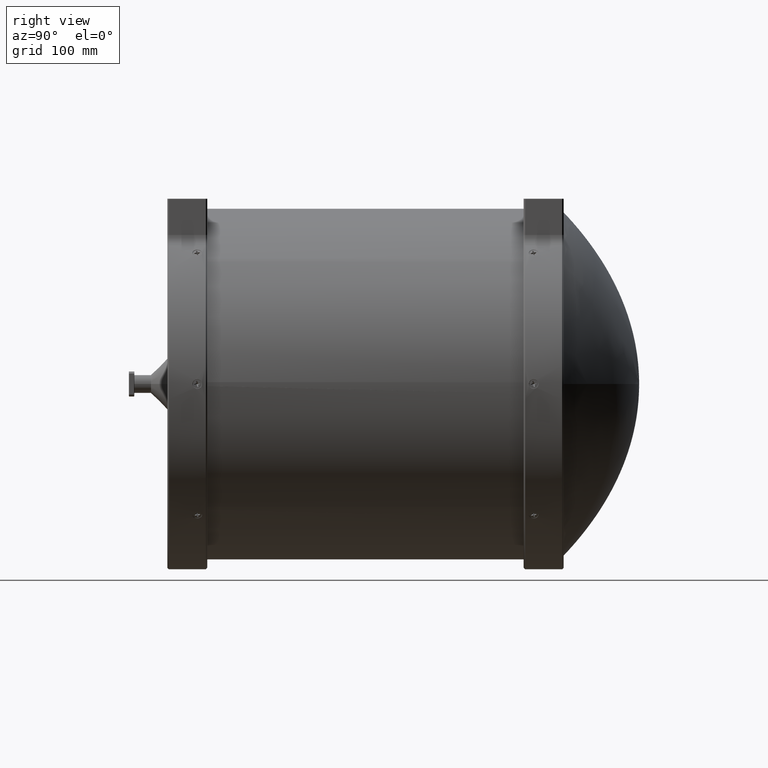
[diagram: clean part render]
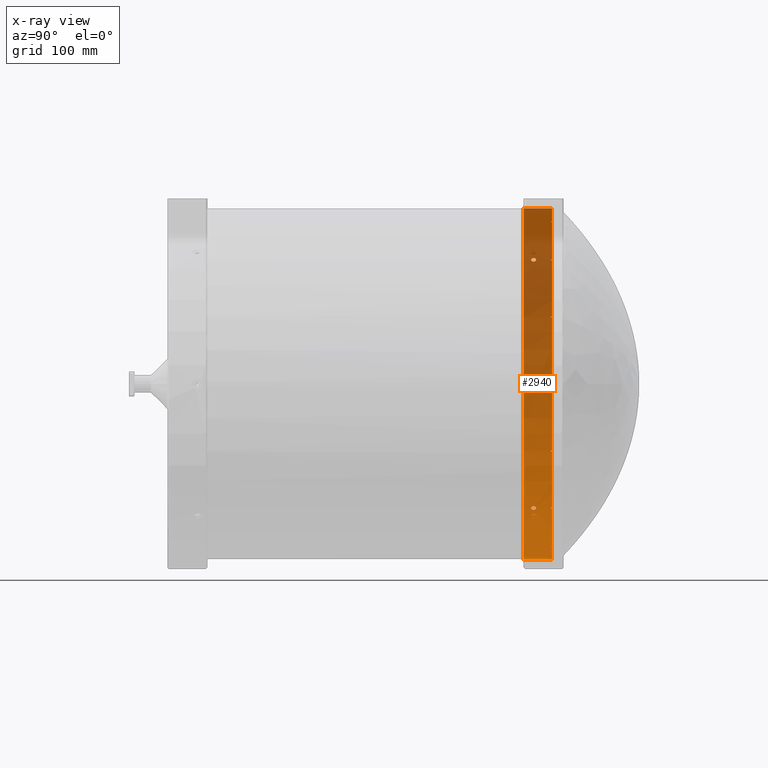
[diagram: x-ray — body ghosted, one internal face saturated and labeled with its STEP entity id]
A machine part, right view, then the same camera in x-ray: the body is ghosted and one INTERNAL B-rep face — a face not visible from any outside direction — is saturated and labeled: STEP entity #2940.
In plain terms, the highlighted cylindrical surface (partial cylindrical patch) has radius 156.4 mm, axis along (-0, 1, -0).
Its self-contained STEP definition (entity closure, byte-faithful):
#1 = CARTESIAN_POINT ( 'NONE',  ( -109.3222791216181520, 149.9638981589436355, 111.8470492947781878 ) ) ;
#89 = CARTESIAN_POINT ( 'NONE',  ( -1.484710441420378668, 150.2843136331242420, 156.3934878425915826 ) ) ;
#96 = EDGE_LOOP ( 'NONE', ( #1715, #8971 ) ) ;
#123 = VERTEX_POINT ( 'NONE', #3724 ) ;
#499 = CIRCLE ( 'NONE', #4553, 156.4004999999999939 ) ;
#532 = VECTOR ( 'NONE', #4322, 1000.000000000000000 ) ;
#596 = CARTESIAN_POINT ( 'NONE',  ( -109.3883073050205184, 147.1038961953719877, 111.7824914043780353 ) ) ;
#600 = CARTESIAN_POINT ( 'NONE',  ( -109.3134651437362805, 149.9709975165611411, -111.8558251987888781 ) ) ;
#759 = CARTESIAN_POINT ( 'NONE',  ( -5.139198929834911689E-16, 146.3421000000000447, 156.4004999999999939 ) ) ;
#981 = B_SPLINE_CURVE_WITH_KNOTS ( 'NONE', 3,
 ( #12055, #23724, #19898, #24225, #35400, #16118, #600, #31606, #43253, #23964, #20158, #20427, #9019, #25245, #24980, #2107, #33362, #1612, #24494, #32849, #36164, #9263, #48817, #44494, #5942, #14074, #28570, #5178, #1352, #36416 ),
 .UNSPECIFIED., .F., .F.,
 ( 4, 2, 2, 2, 2, 2, 2, 2, 2, 2, 2, 2, 2, 2, 4 ),
 ( 0.007028053637818780681, 0.007467207785012362417, 0.007906361932205945020, 0.008784670226593118900, 0.009223824373786736197, 0.009662978520980353495, 0.01010213266817397079, 0.01054128681536758635, 0.01098044096256120365, 0.01141959510975482095, 0.01185874925694843651, 0.01229790340414205554, 0.01273705755133567111, 0.01317621169852928840, 0.01405451999291644494 ),
 .UNSPECIFIED. ) ;
#991 = VERTEX_POINT ( 'NONE', #35876 ) ;
#1233 = EDGE_CURVE ( 'NONE', #18843, #46830, #22622, .T. ) ;
#1261 = ORIENTED_EDGE ( 'NONE', *, *, #8645, .F. ) ;
#1349 = CARTESIAN_POINT ( 'NONE',  ( -110.3839399403950665, 146.3422041026280453, 110.7997662055389156 ) ) ;
#1352 = CARTESIAN_POINT ( 'NONE',  ( -112.1699361198928528, 148.8869849902441160, -108.9909254530355867 ) ) ;
#1492 = CARTESIAN_POINT ( 'NONE',  ( -59.54326178428616601, 163.8299999999993588, 144.6226689573179272 ) ) ;
#1495 = CARTESIAN_POINT ( 'NONE',  ( 0.000000000000000000, 139.7000000000000171, 0.000000000000000000 ) ) ;
#1612 = CARTESIAN_POINT ( 'NONE',  ( -111.0014204885376330, 150.7666551754239492, -110.1808589334436022 ) ) ;
#1715 = ORIENTED_EDGE ( 'NONE', *, *, #45502, .F. ) ;
#1733 = LINE ( 'NONE', #6051, #2321 ) ;
#1853 = VERTEX_POINT ( 'NONE', #28646 ) ;
#1906 = EDGE_CURVE ( 'NONE', #18781, #21288, #3162, .T. ) ;
#2020 = ORIENTED_EDGE ( 'NONE', *, *, #35871, .F. ) ;
#2107 = CARTESIAN_POINT ( 'NONE',  ( -110.6953212067969332, 150.8380238344928443, -110.4883895722064580 ) ) ;
#2321 = VECTOR ( 'NONE', #2497, 1000.000000000000000 ) ;
#2419 = CARTESIAN_POINT ( 'NONE',  ( -0.7248242039380327073, 146.4570659328283000, 156.3988796869685416 ) ) ;
#2425 = CARTESIAN_POINT ( 'NONE',  ( -156.3843449512770007, 148.5900000000000318, -2.247900000000494725 ) ) ;
#2497 = DIRECTION ( 'NONE',  ( -0.000000000000000000, 1.000000000000000000, -0.000000000000000000 ) ) ;
#2706 = CARTESIAN_POINT ( 'NONE',  ( -156.3843449512770007, 148.5900000000000318, -2.247900000000494725 ) ) ;
#2731 = ORIENTED_EDGE ( 'NONE', *, *, #28660, .F. ) ;
#2765 = CARTESIAN_POINT ( 'NONE',  ( -112.1597790698019850, 148.2954305501027648, -109.0013815271136224 ) ) ;
#2910 = CARTESIAN_POINT ( 'NONE',  ( -156.3996215737834632, 146.4012004309230122, 0.5898827259143141211 ) ) ;
#2940 = ADVANCED_FACE ( 'NONE', ( #50208, #42349, #23079, #14978 ), #42085, .F. ) ;
#2998 = CARTESIAN_POINT ( 'NONE',  ( 1.915353717100456204E-14, 139.7000000000000171, -156.4004999999999939 ) ) ;
#3001 = CARTESIAN_POINT ( 'NONE',  ( -110.0793401135429974, 146.4565201592000960, -111.1020872876617034 ) ) ;
#3060 = CARTESIAN_POINT ( 'NONE',  ( -60.16022575137983353, 167.0050000000000239, 144.3671141146509171 ) ) ;
#3109 = CARTESIAN_POINT ( 'NONE',  ( -156.3853614759627249, 149.1721696722472643, -2.176221920624356265 ) ) ;
#3158 = CARTESIAN_POINT ( 'NONE',  ( -1.964903268376140710, 147.4595137952245238, 156.3881968383930996 ) ) ;
#3162 = B_SPLINE_CURVE_WITH_KNOTS ( 'NONE', 3,
 ( #9341, #21506, #5265, #40777 ),
 .UNSPECIFIED., .F., .F.,
 ( 4, 4 ),
 ( 1.117339526737857070E-06, 0.0006689143253708616007 ),
 .UNSPECIFIED. ) ;
#3255 = LINE ( 'NONE', #2998, #35415 ) ;
#3292 = CARTESIAN_POINT ( 'NONE',  ( -144.6226689573161934, 163.8300000000000409, 59.54326178428735261 ) ) ;
#3314 = CARTESIAN_POINT ( 'NONE',  ( -109.3888349142864200, 150.0769515125258806, 111.7819751929658878 ) ) ;
#3370 = CARTESIAN_POINT ( 'NONE',  ( -156.3988727147142868, 150.7224223590039287, -0.7262787653805897747 ) ) ;
#3422 = EDGE_CURVE ( 'NONE', #47756, #26134, #31498, .T. ) ;
#3553 = CARTESIAN_POINT ( 'NONE',  ( -2.247899999999933396, 148.5900000000000318, -156.3843449512770007 ) ) ;
#3615 = CARTESIAN_POINT ( 'NONE',  ( -156.4004981973180293, 150.8377745760675737, -0.1501031856089459215 ) ) ;
#3619 = EDGE_CURVE ( 'NONE', #33576, #5279, #48163, .T. ) ;
#3649 = ORIENTED_EDGE ( 'NONE', *, *, #28555, .F. ) ;
#3724 = CARTESIAN_POINT ( 'NONE',  ( -59.54326178428682681, 163.8300000000000409, -144.6226689573163924 ) ) ;
#3800 = CARTESIAN_POINT ( 'NONE',  ( 1.915353715773463104E-14, 150.8378999999999621, -156.4004999999999939 ) ) ;
#3864 = CARTESIAN_POINT ( 'NONE',  ( -156.3994896575807161, 150.7666551754240061, 0.5802246399882275973 ) ) ;
#4053 = CARTESIAN_POINT ( 'NONE',  ( -0.2946916012418118180, 150.8232986785969274, -156.4002882199627038 ) ) ;
#4058 = CARTESIAN_POINT ( 'NONE',  ( -109.8858480906002910, 150.6109218953408231, 111.2934651083193671 ) ) ;
#4178 = CARTESIAN_POINT ( 'NONE',  ( -144.3671141146517982, 165.1000000000000227, -60.16022575138083539 ) ) ;
#4299 = CARTESIAN_POINT ( 'NONE',  ( -110.8010078864533057, 150.8231362758495777, 110.3823975609150239 ) ) ;
#4322 = DIRECTION ( 'NONE',  ( 0.000000000000000000, -1.000000000000000000, 0.000000000000000000 ) ) ;
#4352 = CARTESIAN_POINT ( 'NONE',  ( -2.247899999999933396, 148.5900000000000318, -156.3843449512770007 ) ) ;
#4467 = B_SPLINE_CURVE_WITH_KNOTS ( 'NONE', 3,
 ( #22990, #38467, #31804, #23916 ),
 .UNSPECIFIED., .F., .F.,
 ( 4, 4 ),
 ( 1.117339526455412452E-06, 0.0006689143253705695166 ),
 .UNSPECIFIED. ) ;
#4553 = AXIS2_PLACEMENT_3D ( 'NONE', #15137, #19423, #39443 ) ;
#4652 = CARTESIAN_POINT ( 'NONE',  ( -109.2036478279091511, 147.4639628842843422, 111.9628793737166035 ) ) ;
#4682 = VERTEX_POINT ( 'NONE', #11934 ) ;
#4710 = ORIENTED_EDGE ( 'NONE', *, *, #40605, .F. ) ;
#4924 = CARTESIAN_POINT ( 'NONE',  ( -108.9909254530351603, 148.5900000000000318, 112.1699361198932223 ) ) ;
#4970 = VERTEX_POINT ( 'NONE', #14948 ) ;
#5088 = CARTESIAN_POINT ( 'NONE',  ( -110.3555002158504266, 165.1000000000000227, 110.8277039929973142 ) ) ;
#5178 = CARTESIAN_POINT ( 'NONE',  ( -112.1283640703719868, 149.1820052132925696, -109.0337516150593444 ) ) ;
#5265 = CARTESIAN_POINT ( 'NONE',  ( -156.4006188069930943, 163.7902162304462479, -0.1112994976400838304 ) ) ;
#5279 = VERTEX_POINT ( 'NONE', #48550 ) ;
#5358 = CARTESIAN_POINT ( 'NONE',  ( -1.692702713705215967, 147.1036184558379034, -156.3913742046519531 ) ) ;
#5362 = EDGE_CURVE ( 'NONE', #37090, #45421, #43807, .T. ) ;
#5419 = CARTESIAN_POINT ( 'NONE',  ( -110.8277039929972716, 163.8299999999993588, -110.3555002158504834 ) ) ;
#5496 = ORIENTED_EDGE ( 'NONE', *, *, #45801, .F. ) ;
#5507 = EDGE_CURVE ( 'NONE', #21277, #30909, #15822, .T. ) ;
#5734 = CARTESIAN_POINT ( 'NONE',  ( -5.139198929834911689E-16, 146.3421000000000447, 156.4004999999999939 ) ) ;
#5739 = CARTESIAN_POINT ( 'NONE',  ( -156.3843449512770292, 148.4414739603394366, 2.247899999999397824 ) ) ;
#5762 = ORIENTED_EDGE ( 'NONE', *, *, #6767, .F. ) ;
#5849 = CARTESIAN_POINT ( 'NONE',  ( -60.16022575138136119, 163.8299999999993872, -144.3671141146515708 ) ) ;
#5869 = EDGE_CURVE ( 'NONE', #12479, #18843, #34047, .T. ) ;
#5942 = CARTESIAN_POINT ( 'NONE',  ( -111.8470492947778610, 149.9638981589436639, -109.3222791216186209 ) ) ;
#5987 = CARTESIAN_POINT ( 'NONE',  ( -156.3859646957221230, 147.8653363443432625, 2.132986415898618926 ) ) ;
#6051 = CARTESIAN_POINT ( 'NONE',  ( -144.3671141146507182, 167.0050000000000239, -60.16022575138032380 ) ) ;
#6179 = CARTESIAN_POINT ( 'NONE',  ( -144.3671141146513719, 163.8299999999993872, 60.16022575138189410 ) ) ;
#6228 = CARTESIAN_POINT ( 'NONE',  ( -156.3913602142547461, 147.1050062789252308, -1.694067915433150384 ) ) ;
#6303 = ORIENTED_EDGE ( 'NONE', *, *, #1233, .F. ) ;
#6591 = CARTESIAN_POINT ( 'NONE',  ( -109.3875044156940533, 147.1050062789252593, -111.7832782372811380 ) ) ;
#6636 = CARTESIAN_POINT ( 'NONE',  ( -111.5574825193759239, 150.3770266542173317, 109.6177879499542485 ) ) ;
#6691 = DIRECTION ( 'NONE',  ( -0.000000000000000000, 1.000000000000000000, -0.000000000000000000 ) ) ;
#6738 = ORIENTED_EDGE ( 'NONE', *, *, #17591, .F. ) ;
#6767 = EDGE_CURVE ( 'NONE', #46830, #9825, #4467, .T. ) ;
#6827 = CARTESIAN_POINT ( 'NONE',  ( -110.1788478945522769, 146.4140628224803322, -111.0034173301105795 ) ) ;
#6928 = CARTESIAN_POINT ( 'NONE',  ( -156.3973744679516358, 150.6095492448704647, -0.9980615260424365864 ) ) ;
#6929 = DIRECTION ( 'NONE',  ( 0.000000000000000000, -1.000000000000000000, 0.000000000000000000 ) ) ;
#7073 = CARTESIAN_POINT ( 'NONE',  ( -111.5646995482544668, 146.7928410048550916, -109.6105708974620114 ) ) ;
#7076 = DIRECTION ( 'NONE',  ( 0.000000000000000000, -1.000000000000000000, 0.000000000000000000 ) ) ;
#7129 = EDGE_CURVE ( 'NONE', #26521, #19590, #34551, .T. ) ;
#7331 = CARTESIAN_POINT ( 'NONE',  ( -112.0110845116237641, 147.5930864328059613, -109.1541869622596010 ) ) ;
#7345 = VERTEX_POINT ( 'NONE', #45129 ) ;
#7367 = CARTESIAN_POINT ( 'NONE',  ( -110.5132375106720986, 163.7902162304462479, 110.6706387697221032 ) ) ;
#7383 = CARTESIAN_POINT ( 'NONE',  ( -1.949877247303314576, 149.7181780404993390, -156.3883663002727076 ) ) ;
#7387 = CARTESIAN_POINT ( 'NONE',  ( -109.6198058861621547, 150.3791719409513519, 111.5554995138392087 ) ) ;
#7484 = EDGE_CURVE ( 'NONE', #1853, #22922, #3255, .T. ) ;
#7583 = CARTESIAN_POINT ( 'NONE',  ( -111.0083430654307790, 146.4012004309230122, -110.1741229142335641 ) ) ;
#7610 = LINE ( 'NONE', #41842, #35255 ) ;
#7712 = CARTESIAN_POINT ( 'NONE',  ( -0.2956391438410629346, 150.8232058603648511, 156.4002868600958607 ) ) ;
#7729 = CARTESIAN_POINT ( 'NONE',  ( -2.247899999999968035, 148.5900000000000318, 156.3843449512770007 ) ) ;
#7808 = ORIENTED_EDGE ( 'NONE', *, *, #41181, .T. ) ;
#7925 = CARTESIAN_POINT ( 'NONE',  ( -156.3843449512770007, 148.5900000000000318, -2.247900000000494725 ) ) ;
#8035 = VERTEX_POINT ( 'NONE', #47302 ) ;
#8128 = CARTESIAN_POINT ( 'NONE',  ( -111.1042601065383622, 150.7224223590038434, 110.0771468264739212 ) ) ;
#8182 = EDGE_CURVE ( 'NONE', #45240, #26582, #9522, .T. ) ;
#8247 = CARTESIAN_POINT ( 'NONE',  ( -111.8484351627812714, 147.2188013726390921, 109.3208606766194464 ) ) ;
#8324 = CARTESIAN_POINT ( 'NONE',  ( -110.3555002158509097, 165.1000000000000227, -110.8277039929968169 ) ) ;
#8343 = CARTESIAN_POINT ( 'NONE',  ( -60.16022575138094908, 165.1000000000000227, -144.3671141146517414 ) ) ;
#8437 = CARTESIAN_POINT ( 'NONE',  ( -0.2933085186974920822, 146.3421000000001015, -156.4004999999999939 ) ) ;
#8492 = CARTESIAN_POINT ( 'NONE',  ( -110.8001173325989015, 146.3566642991476385, 110.3832921298142224 ) ) ;
#8552 = DIRECTION ( 'NONE',  ( 0.000000000000000000, -1.000000000000000000, 0.000000000000000000 ) ) ;
#8645 = EDGE_CURVE ( 'NONE', #12861, #13016, #10379, .T. ) ;
#8660 = ORIENTED_EDGE ( 'NONE', *, *, #22976, .F. ) ;
#8971 = ORIENTED_EDGE ( 'NONE', *, *, #47056, .F. ) ;
#9013 = CARTESIAN_POINT ( 'NONE',  ( -111.7832782372807259, 147.1050062789252593, 109.3875044156943659 ) ) ;
#9019 = CARTESIAN_POINT ( 'NONE',  ( -110.1786538869843071, 150.7658307032855873, -111.0036092548431554 ) ) ;
#9103 = CARTESIAN_POINT ( 'NONE',  ( -144.3671141146515424, 165.1000000000000227, 60.16022575138146067 ) ) ;
#9150 = VERTEX_POINT ( 'NONE', #3292 ) ;
#9259 = CARTESIAN_POINT ( 'NONE',  ( -109.3203992152397888, 147.2195929738922189, 111.8488863243440221 ) ) ;
#9263 = CARTESIAN_POINT ( 'NONE',  ( -111.5554995138388108, 150.3791719409513519, -109.6198058861625952 ) ) ;
#9341 = CARTESIAN_POINT ( 'NONE',  ( -156.4001435806451354, 163.8299999999993588, 0.3338984929226636589 ) ) ;
#9374 = DIRECTION ( 'NONE',  ( -0.000000000000000000, 1.000000000000000000, -0.000000000000000000 ) ) ;
#9522 = LINE ( 'NONE', #37180, #11976 ) ;
#9557 = CARTESIAN_POINT ( 'NONE',  ( -156.3973918622942847, 146.5691081320513263, -0.9953583175128567495 ) ) ;
#9654 = DIRECTION ( 'NONE',  ( -0.000000000000000000, 1.000000000000000000, -0.000000000000000000 ) ) ;
#9700 = AXIS2_PLACEMENT_3D ( 'NONE', #34046, #49497, #26429 ) ;
#9825 = VERTEX_POINT ( 'NONE', #38748 ) ;
#10048 = ORIENTED_EDGE ( 'NONE', *, *, #8182, .F. ) ;
#10059 = CARTESIAN_POINT ( 'NONE',  ( -156.4004985037625772, 146.3422041026280169, 0.2940335718784212737 ) ) ;
#10379 = CIRCLE ( 'NONE', #35486, 156.4004999999999939 ) ;
#10385 = CARTESIAN_POINT ( 'NONE',  ( -111.9628793737162766, 147.4639628842843990, -109.2036478279095917 ) ) ;
#10438 = CARTESIAN_POINT ( 'NONE',  ( -111.6384028535128294, 150.2820770812720070, 109.5353556239376758 ) ) ;
#10559 = CARTESIAN_POINT ( 'NONE',  ( -156.4002887168330744, 146.3566642991476670, -0.2947399274588001772 ) ) ;
#10661 = CARTESIAN_POINT ( 'NONE',  ( -111.7824914043776516, 147.1038961953720445, -109.3883073050210015 ) ) ;
#10706 = CARTESIAN_POINT ( 'NONE',  ( -1.785753669189259041, 149.9632773949909961, -156.3903264885037174 ) ) ;
#10763 = CARTESIAN_POINT ( 'NONE',  ( -156.3903049914159169, 149.9709975165611411, -1.797720035145230266 ) ) ;
#10790 = CARTESIAN_POINT ( 'NONE',  ( -0.9961356296481452821, 150.6105196767777841, 156.3973870174438616 ) ) ;
#10845 = CARTESIAN_POINT ( 'NONE',  ( -110.8277039929955947, 167.0050000000000239, 110.3555002158504976 ) ) ;
#10858 = B_SPLINE_CURVE_WITH_KNOTS ( 'NONE', 3,
 ( #40896, #45465, #25700, #41140 ),
 .UNSPECIFIED., .F., .F.,
 ( 4, 4 ),
 ( 1.117339526470167554E-06, 0.0003350158324486071475 ),
 .UNSPECIFIED. ) ;
#10949 = CARTESIAN_POINT ( 'NONE',  ( -108.9909254530351888, 148.8869849902441160, 112.1699361198932934 ) ) ;
#11197 = CARTESIAN_POINT ( 'NONE',  ( -109.5371634590763961, 150.2843159597925649, 111.6366293081506029 ) ) ;
#11255 = CARTESIAN_POINT ( 'NONE',  ( -156.4002914970313327, 150.8235270218532946, 0.2929939047166290056 ) ) ;
#11409 = DIRECTION ( 'NONE',  ( 0.000000000000000000, 0.000000000000000000, -1.000000000000000000 ) ) ;
#11428 = ORIENTED_EDGE ( 'NONE', *, *, #3619, .F. ) ;
#11551 = CARTESIAN_POINT ( 'NONE',  ( -2.233236632864504578, 148.8854710614503460, 156.3845576786885090 ) ) ;
#11706 = VERTEX_POINT ( 'NONE', #6179 ) ;
#11757 = CARTESIAN_POINT ( 'NONE',  ( -156.3881939368497456, 149.7200619893784790, -1.965129085682548737 ) ) ;
#11847 = VERTEX_POINT ( 'NONE', #42440 ) ;
#11934 = CARTESIAN_POINT ( 'NONE',  ( -108.9909254530343929, 148.5900000000000318, -112.1699361198939613 ) ) ;
#11976 = VECTOR ( 'NONE', #39960, 1000.000000000000000 ) ;
#11998 = CARTESIAN_POINT ( 'NONE',  ( -60.16022575138083539, 167.0050000000000239, -144.3671141146505477 ) ) ;
#12055 = CARTESIAN_POINT ( 'NONE',  ( -108.9909254530343929, 148.5900000000000318, -112.1699361198939613 ) ) ;
#12061 = EDGE_CURVE ( 'NONE', #49057, #11847, #46149, .T. ) ;
#12083 = CARTESIAN_POINT ( 'NONE',  ( 1.199937640644937138E-17, 163.7994762805534492, 156.4004999999999939 ) ) ;
#12089 = VERTEX_POINT ( 'NONE', #27421 ) ;
#12258 = CARTESIAN_POINT ( 'NONE',  ( -2.247899999999933840, 148.4414403223697434, -156.3843449512770292 ) ) ;
#12468 = CARTESIAN_POINT ( 'NONE',  ( -60.16022575137983353, 163.8300000000000409, 144.3671141146509171 ) ) ;
#12479 = VERTEX_POINT ( 'NONE', #4178 ) ;
#12606 = AXIS2_PLACEMENT_3D ( 'NONE', #32656, #40484, #21469 ) ;
#12861 = VERTEX_POINT ( 'NONE', #17377 ) ;
#12949 = VERTEX_POINT ( 'NONE', #48824 ) ;
#12958 = DIRECTION ( 'NONE',  ( 0.000000000000000000, -1.000000000000000000, 0.000000000000000000 ) ) ;
#13009 = CARTESIAN_POINT ( 'NONE',  ( -2.132934067300390701, 147.8651757965012337, -156.3859654184932424 ) ) ;
#13016 = VERTEX_POINT ( 'NONE', #42444 ) ;
#13094 = VECTOR ( 'NONE', #9654, 1000.000000000000000 ) ;
#13317 = CARTESIAN_POINT ( 'NONE',  ( -111.6363654703678066, 146.8952095767955939, 109.5374334204219053 ) ) ;
#13503 = VECTOR ( 'NONE', #49990, 1000.000000000000000 ) ;
#13618 = VECTOR ( 'NONE', #27395, 1000.000000000000000 ) ;
#13697 = ORIENTED_EDGE ( 'NONE', *, *, #1906, .F. ) ;
#13877 = CARTESIAN_POINT ( 'NONE',  ( -1.126268007371314273, 146.6390593093949519, 156.3964924644291443 ) ) ;
#14074 = CARTESIAN_POINT ( 'NONE',  ( -111.9618265719983867, 149.7187298634904096, -109.2047276401315088 ) ) ;
#14121 = CARTESIAN_POINT ( 'NONE',  ( -156.3903088782938937, 147.2188013726390921, -1.787265059119373944 ) ) ;
#14366 = CARTESIAN_POINT ( 'NONE',  ( -156.3853681060048473, 148.0062598689618483, -2.175745388783711043 ) ) ;
#14485 = LINE ( 'NONE', #38076, #20081 ) ;
#14719 = CARTESIAN_POINT ( 'NONE',  ( -109.0731333780215806, 147.8661125842919262, -112.0900136456021556 ) ) ;
#14948 = CARTESIAN_POINT ( 'NONE',  ( -59.54326178428661365, 165.1000000000000227, 144.6226689573177282 ) ) ;
#14965 = CARTESIAN_POINT ( 'NONE',  ( -109.2043656878955460, 147.4622878286282059, -111.9621790701847033 ) ) ;
#14978 = FACE_OUTER_BOUND ( 'NONE', #18355, .T. ) ;
#15026 = CARTESIAN_POINT ( 'NONE',  ( -110.8277039929963479, 167.0050000000000239, -110.3555002158497302 ) ) ;
#15066 = CARTESIAN_POINT ( 'NONE',  ( -156.3913796273604078, 150.0769515125259090, 1.692205719384627605 ) ) ;
#15137 = CARTESIAN_POINT ( 'NONE',  ( 0.000000000000000000, 165.1000000000000227, 0.000000000000000000 ) ) ;
#15322 = VERTEX_POINT ( 'NONE', #19631 ) ;
#15354 = CARTESIAN_POINT ( 'NONE',  ( -1.694503472149150314, 150.0744937740279852, 156.3913554601039095 ) ) ;
#15624 = CARTESIAN_POINT ( 'NONE',  ( -2.188981415617398785, 148.0007595776387177, 156.3852208988437269 ) ) ;
#15822 = LINE ( 'NONE', #11998, #27631 ) ;
#15901 = B_SPLINE_CURVE_WITH_KNOTS ( 'NONE', 3,
 ( #3800, #19291, #4053, #19552, #35055, #34799, #26180, #19051, #30477, #50244, #10706, #7383, #22869, #49494, #41865, #3553 ),
 .UNSPECIFIED., .F., .F.,
 ( 4, 2, 2, 2, 2, 2, 2, 4 ),
 ( 0.01054315358560255558, 0.01098207438651679045, 0.01142099518743102532, 0.01185991598834525845, 0.01229883678925949332, 0.01273775759017372819, 0.01317667839108796132, 0.01405451999291635300 ),
 .UNSPECIFIED. ) ;
#15944 = VERTEX_POINT ( 'NONE', #5088 ) ;
#15984 = VERTEX_POINT ( 'NONE', #41083 ) ;
#16002 = LINE ( 'NONE', #31477, #19425 ) ;
#16118 = CARTESIAN_POINT ( 'NONE',  ( -109.1935963278700967, 149.7200619893784790, -111.9727085326566254 ) ) ;
#16281 = ORIENTED_EDGE ( 'NONE', *, *, #26876, .F. ) ;
#16316 = CARTESIAN_POINT ( 'NONE',  ( -1.130486205994478022, 146.6250967322449412, -156.3966484300455591 ) ) ;
#16623 = CARTESIAN_POINT ( 'NONE',  ( -109.6105708974615567, 146.7928410048550063, 111.5646995482548220 ) ) ;
#16644 = EDGE_LOOP ( 'NONE', ( #30645, #28736 ) ) ;
#16924 = CARTESIAN_POINT ( 'NONE',  ( -156.4001435806451639, 165.1000000000000227, 0.3338984929221882614 ) ) ;
#16968 = ORIENTED_EDGE ( 'NONE', *, *, #5362, .F. ) ;
#17183 = VECTOR ( 'NONE', #9374, 1000.000000000000000 ) ;
#17377 = CARTESIAN_POINT ( 'NONE',  ( -59.54326178428722471, 165.1000000000000227, -144.6226689573174724 ) ) ;
#17591 = EDGE_CURVE ( 'NONE', #29595, #22922, #40778, .T. ) ;
#17663 = CARTESIAN_POINT ( 'NONE',  ( -156.3874632221466072, 147.5930864328059897, 2.020131630310897819 ) ) ;
#17804 = EDGE_CURVE ( 'NONE', #33728, #29595, #15901, .T. ) ;
#17953 = CARTESIAN_POINT ( 'NONE',  ( -0.3338984929221190945, 163.8299999999993588, -156.4001435806451639 ) ) ;
#17961 = EDGE_CURVE ( 'NONE', #13016, #31061, #16002, .T. ) ;
#18072 = CARTESIAN_POINT ( 'NONE',  ( -111.9727085326562417, 149.7200619893784506, 109.1935963278704946 ) ) ;
#18093 = B_SPLINE_CURVE_WITH_KNOTS ( 'NONE', 3,
 ( #4924, #35396, #24732, #28802, #32093, #27791, #4652, #9259, #596, #16623, #36161, #32345, #1349, #43250, #8492, #20423, #36410, #28292, #23961, #24221, #13317, #9013, #8247, #47035, #23721, #40177, #39184, #35916, #39429, #47284 ),
 .UNSPECIFIED., .F., .F.,
 ( 4, 2, 2, 2, 2, 2, 2, 2, 2, 2, 2, 2, 2, 2, 4 ),
 ( 0.000000000000000000, 0.0004392533523637066981, 0.0008785067047274133963, 0.001317760057091120094, 0.001757013409454826793, 0.002635520114182180774, 0.003514026818909534756, 0.003953280171273197002, 0.004392533523636859248, 0.004831786876000521494, 0.005271040228364183740, 0.005710293580727845986, 0.006149546933091508231, 0.006588800285455170477, 0.007028053637818832723 ),
 .UNSPECIFIED. ) ;
#18258 = CIRCLE ( 'NONE', #12606, 156.4004999999999939 ) ;
#18261 = CARTESIAN_POINT ( 'NONE',  ( -109.7920977967490899, 146.6395239898628233, -111.3859349276867192 ) ) ;
#18284 = VERTEX_POINT ( 'NONE', #27857 ) ;
#18345 = LINE ( 'NONE', #21642, #41179 ) ;
#18355 = EDGE_LOOP ( 'NONE', ( #7808, #44675, #6738, #45052, #35785, #37824, #38622, #1261, #8660, #49970, #27198, #20273, #44302, #5762, #6303, #38556, #3649, #25964, #20529, #46578, #48903, #13697, #2731, #16968, #49911, #4710, #26811, #44119, #27953, #43886, #33475, #5496, #22542, #40990, #25342, #42177, #11428, #16281, #19782, #2020, #27355, #10048 ) ) ;
#18501 = CARTESIAN_POINT ( 'NONE',  ( -109.6184600978941717, 146.8022940896621833, -111.5568215937159238 ) ) ;
#18611 = CARTESIAN_POINT ( 'NONE',  ( -156.3852317427322589, 149.1820052132925980, 2.188221452296176484 ) ) ;
#18646 = LINE ( 'NONE', #45768, #38949 ) ;
#18781 = VERTEX_POINT ( 'NONE', #19302 ) ;
#18843 = VERTEX_POINT ( 'NONE', #23367 ) ;
#18869 = CARTESIAN_POINT ( 'NONE',  ( -156.3964863941127703, 150.5404581759393352, -1.127113427352046449 ) ) ;
#18872 = CARTESIAN_POINT ( 'NONE',  ( 1.915353717100456204E-14, 139.7000000000000171, -156.4004999999999939 ) ) ;
#18898 = CARTESIAN_POINT ( 'NONE',  ( -2.247899999999968035, 148.5900000000000318, 156.3843449512770007 ) ) ;
#19012 = EDGE_LOOP ( 'NONE', ( #33516, #25842 ) ) ;
#19051 = CARTESIAN_POINT ( 'NONE',  ( -1.369612580176048811, 150.3784997193160393, -156.3945505783767942 ) ) ;
#19133 = CARTESIAN_POINT ( 'NONE',  ( -2.175763045827698416, 149.1736987021855327, 156.3853678621685788 ) ) ;
#19291 = CARTESIAN_POINT ( 'NONE',  ( -0.1481540797168097723, 150.8379000000000190, -156.4004999999999654 ) ) ;
#19302 = CARTESIAN_POINT ( 'NONE',  ( -156.4001435806451354, 163.8299999999993588, 0.3338984929226636589 ) ) ;
#19393 = CARTESIAN_POINT ( 'NONE',  ( -1.370674218552707879, 146.8022915815823239, 156.3945414232454709 ) ) ;
#19423 = DIRECTION ( 'NONE',  ( 0.000000000000000000, -1.000000000000000000, 0.000000000000000000 ) ) ;
#19425 = VECTOR ( 'NONE', #46911, 1000.000000000000000 ) ;
#19552 = CARTESIAN_POINT ( 'NONE',  ( -0.5817317764277124548, 150.7662477496736528, -156.3994839715513478 ) ) ;
#19590 = VERTEX_POINT ( 'NONE', #34877 ) ;
#19609 = CARTESIAN_POINT ( 'NONE',  ( -156.3988897773424185, 150.7236717928213920, 0.7226775365762905246 ) ) ;
#19631 = CARTESIAN_POINT ( 'NONE',  ( -144.6226689573176998, 163.8299999999993588, -59.54326178428666339 ) ) ;
#19660 = B_SPLINE_CURVE_WITH_KNOTS ( 'NONE', 3,
 ( #45132, #42336, #2765, #30436, #45385, #7331, #10385, #37799, #10661, #7073, #26140, #7583, #49699, #34496, #41581, #6827, #3001, #38539, #18261, #18501, #41327, #6591, #33997, #14965, #49440, #14719, #22082, #30196, #26382, #22825 ),
 .UNSPECIFIED., .F., .F.,
 ( 4, 2, 2, 2, 2, 2, 2, 2, 2, 2, 2, 2, 2, 2, 4 ),
 ( 0.000000000000000000, 0.0004392533523636510786, 0.0008785067047273021571, 0.001317760057090953127, 0.001757013409454604314, 0.002635520114182006435, 0.003514026818909408989, 0.003953280171273081643, 0.004392533523636752563, 0.004831786876000424349, 0.005271040228364095269, 0.005710293580727766188, 0.006149546933091437975, 0.006588800285455108895, 0.007028053637818780681 ),
 .UNSPECIFIED. ) ;
#19751 = CIRCLE ( 'NONE', #46476, 156.4004999999999939 ) ;
#19759 = CARTESIAN_POINT ( 'NONE',  ( -156.4001435806439986, 167.0050000000000239, -0.3338984929214601771 ) ) ;
#19782 = ORIENTED_EDGE ( 'NONE', *, *, #37449, .F. ) ;
#19789 = CARTESIAN_POINT ( 'NONE',  ( -110.3845287202318843, 150.8235270218532662, 110.7988846739751807 ) ) ;
#19796 = VECTOR ( 'NONE', #40615, 1000.000000000000000 ) ;
#19898 = CARTESIAN_POINT ( 'NONE',  ( -109.0011253677502765, 148.8824555797265248, -112.1600280598186998 ) ) ;
#20001 = LINE ( 'NONE', #19759, #13618 ) ;
#20081 = VECTOR ( 'NONE', #29474, 1000.000000000000000 ) ;
#20097 = EDGE_CURVE ( 'NONE', #25399, #11706, #18646, .T. ) ;
#20158 = CARTESIAN_POINT ( 'NONE',  ( -109.8839079729541623, 150.6095492448704078, -111.2953801191665661 ) ) ;
#20273 = ORIENTED_EDGE ( 'NONE', *, *, #29914, .F. ) ;
#20423 = CARTESIAN_POINT ( 'NONE',  ( -111.0034173301102101, 146.4140628224803038, 110.1788478945526464 ) ) ;
#20427 = CARTESIAN_POINT ( 'NONE',  ( -110.0771468264735660, 150.7224223590039003, -111.1042601065387885 ) ) ;
#20529 = ORIENTED_EDGE ( 'NONE', *, *, #22182, .F. ) ;
#20540 = CARTESIAN_POINT ( 'NONE',  ( -2.247899999999933396, 148.5900000000000318, -156.3843449512770007 ) ) ;
#20563 = CARTESIAN_POINT ( 'NONE',  ( -144.6226689573161934, 167.0050000000000239, 59.54326178428735261 ) ) ;
#20586 = EDGE_CURVE ( 'NONE', #31061, #23329, #10858, .T. ) ;
#20709 = VECTOR ( 'NONE', #49840, 1000.000000000000000 ) ;
#20721 = DIRECTION ( 'NONE',  ( 0.000000000000000000, 0.000000000000000000, -1.000000000000000000 ) ) ;
#20846 = CARTESIAN_POINT ( 'NONE',  ( -2.176181839932735951, 148.0079767612166393, -156.3853620040593455 ) ) ;
#21163 = AXIS2_PLACEMENT_3D ( 'NONE', #35764, #32189, #47632 ) ;
#21171 = VERTEX_POINT ( 'NONE', #31949 ) ;
#21229 = CARTESIAN_POINT ( 'NONE',  ( -0.1485596776048827561, 146.3421000000000731, 156.4005000000000223 ) ) ;
#21233 = CARTESIAN_POINT ( 'NONE',  ( -156.3874595262897174, 147.5936519779596949, -2.020417502412383381 ) ) ;
#21277 = VERTEX_POINT ( 'NONE', #8343 ) ;
#21288 = VERTEX_POINT ( 'NONE', #37522 ) ;
#21469 = DIRECTION ( 'NONE',  ( 0.000000000000000000, 0.000000000000000000, -1.000000000000000000 ) ) ;
#21473 = CARTESIAN_POINT ( 'NONE',  ( -156.3945415149823077, 146.8022940896621833, -1.370628558086190552 ) ) ;
#21506 = CARTESIAN_POINT ( 'NONE',  ( -156.4006188069930943, 163.7902162304462479, 0.1112994976412906706 ) ) ;
#21642 = CARTESIAN_POINT ( 'NONE',  ( -110.3555002158493465, 167.0050000000000239, 110.8277039929967458 ) ) ;
#21721 = CARTESIAN_POINT ( 'NONE',  ( -156.3845582122341682, 148.2942938525876855, -2.233199142884629840 ) ) ;
#21843 = LINE ( 'NONE', #48976, #19796 ) ;
#21869 = CARTESIAN_POINT ( 'NONE',  ( -112.0898718448001432, 149.3142702052366815, 109.0732788715552175 ) ) ;
#22008 = CARTESIAN_POINT ( 'NONE',  ( -110.8277039929965042, 165.1000000000000227, 110.3555002158512508 ) ) ;
#22078 = EDGE_CURVE ( 'NONE', #9825, #48602, #21843, .T. ) ;
#22082 = CARTESIAN_POINT ( 'NONE',  ( -109.0426699475659262, 148.0062598689618483, -112.1196385846549504 ) ) ;
#22182 = EDGE_CURVE ( 'NONE', #21171, #15322, #7610, .T. ) ;
#22226 = CARTESIAN_POINT ( 'NONE',  ( -156.3845563931661218, 148.2954305501027648, 2.233324320118151185 ) ) ;
#22295 = DIRECTION ( 'NONE',  ( 0.000000000000000000, 0.000000000000000000, -1.000000000000000000 ) ) ;
#22343 = CARTESIAN_POINT ( 'NONE',  ( -110.3555002158500997, 163.8299999999993588, 110.8277039929976553 ) ) ;
#22411 = CARTESIAN_POINT ( 'NONE',  ( -156.3965050947558382, 150.5419433127832178, 1.124503645206583968 ) ) ;
#22414 = LINE ( 'NONE', #18872, #40618 ) ;
#22443 = CARTESIAN_POINT ( 'NONE',  ( -1.127480418540224516, 150.5402000886047915, 156.3964833572674138 ) ) ;
#22500 = DIRECTION ( 'NONE',  ( -0.000000000000000000, 1.000000000000000000, -0.000000000000000000 ) ) ;
#22542 = ORIENTED_EDGE ( 'NONE', *, *, #7129, .F. ) ;
#22622 = LINE ( 'NONE', #15026, #30695 ) ;
#22758 = CARTESIAN_POINT ( 'NONE',  ( -112.1699361198935918, 148.5900000000000318, 108.9909254530347766 ) ) ;
#22794 = B_SPLINE_CURVE_WITH_KNOTS ( 'NONE', 3,
 ( #35825, #43157, #42636, #23635 ),
 .UNSPECIFIED., .F., .F.,
 ( 4, 4 ),
 ( 1.117339526492105707E-06, 0.0006689143253706227510 ),
 .UNSPECIFIED. ) ;
#22825 = CARTESIAN_POINT ( 'NONE',  ( -108.9909254530343929, 148.5900000000000318, -112.1699361198939613 ) ) ;
#22863 = EDGE_CURVE ( 'NONE', #47896, #25399, #18258, .T. ) ;
#22866 = EDGE_CURVE ( 'NONE', #26582, #12089, #43959, .T. ) ;
#22869 = CARTESIAN_POINT ( 'NONE',  ( -2.019964532461237194, 149.5870993047431341, -156.3874652651008148 ) ) ;
#22873 = CARTESIAN_POINT ( 'NONE',  ( -108.9909254530351603, 148.5900000000000318, 112.1699361198932223 ) ) ;
#22922 = VERTEX_POINT ( 'NONE', #45782 ) ;
#22952 = CARTESIAN_POINT ( 'NONE',  ( -2.020637091233107085, 149.5858711245498114, 156.3874566530415677 ) ) ;
#22976 = EDGE_CURVE ( 'NONE', #123, #12861, #46295, .T. ) ;
#22990 = CARTESIAN_POINT ( 'NONE',  ( -110.8277039929972716, 163.8299999999993588, -110.3555002158504834 ) ) ;
#23033 = B_SPLINE_CURVE_WITH_KNOTS ( 'NONE', 3,
 ( #33413, #5739, #22226, #41228, #5987, #17663, #48863, #26042, #44544, #29361, #49099, #2910, #10059, #45039, #10559, #28852, #44288, #9557, #25533, #21473, #25029, #6228, #14121, #36955, #21233, #33149, #14366, #21721, #48609, #2425 ),
 .UNSPECIFIED., .F., .F.,
 ( 4, 2, 2, 2, 2, 2, 2, 2, 2, 2, 2, 2, 2, 2, 4 ),
 ( 0.000000000000000000, 0.0004392533523636950972, 0.0008785067047273901943, 0.001317760057091085183, 0.001757013409454780389, 0.002635520114182111819, 0.003514026818909444117, 0.003953280171273109399, 0.004392533523636775114, 0.004831786876000439962, 0.005271040228364105677, 0.005710293580727771393, 0.006149546933091436240, 0.006588800285455102823, 0.007028053637818767671 ),
 .UNSPECIFIED. ) ;
#23079 = FACE_BOUND ( 'NONE', #19012, .T. ) ;
#23174 = CARTESIAN_POINT ( 'NONE',  ( -144.6226689573161934, 163.8300000000000409, 59.54326178428735261 ) ) ;
#23329 = VERTEX_POINT ( 'NONE', #46652 ) ;
#23367 = CARTESIAN_POINT ( 'NONE',  ( -110.8277039929969305, 165.1000000000000227, -110.3555002158508387 ) ) ;
#23382 = CARTESIAN_POINT ( 'NONE',  ( -59.54326178428581784, 167.0050000000000239, 144.6226689573167619 ) ) ;
#23415 = CARTESIAN_POINT ( 'NONE',  ( -156.3903319137084793, 149.9638981589436639, 1.785282110378719089 ) ) ;
#23570 = EDGE_CURVE ( 'NONE', #26134, #47896, #30139, .T. ) ;
#23635 = CARTESIAN_POINT ( 'NONE',  ( -144.3671141146507182, 163.8300000000000409, -60.16022575138032380 ) ) ;
#23721 = CARTESIAN_POINT ( 'NONE',  ( -112.0112840403598256, 147.5936519779596949, 109.1539822067926480 ) ) ;
#23724 = CARTESIAN_POINT ( 'NONE',  ( -108.9909254530343645, 148.7366785195115710, -112.1699361198939755 ) ) ;
#23908 = CARTESIAN_POINT ( 'NONE',  ( 1.915353712425734637E-14, 146.3421000000000731, -156.4004999999999939 ) ) ;
#23916 = CARTESIAN_POINT ( 'NONE',  ( -110.3555002158501281, 163.8300000000000409, -110.8277039929959642 ) ) ;
#23920 = CARTESIAN_POINT ( 'NONE',  ( -144.4527381141028286, 163.7902162304462479, 59.95475295693384510 ) ) ;
#23961 = CARTESIAN_POINT ( 'NONE',  ( -111.3859349276863213, 146.6395239898628233, 109.7920977967494593 ) ) ;
#23964 = CARTESIAN_POINT ( 'NONE',  ( -109.7920265353795202, 150.5404581759392784, -111.3860056306739779 ) ) ;
#24221 = CARTESIAN_POINT ( 'NONE',  ( -111.5568215937154974, 146.8022940896621833, 109.6184600978945269 ) ) ;
#24225 = CARTESIAN_POINT ( 'NONE',  ( -109.0423283005222146, 149.1721696722472359, -112.1199708554031815 ) ) ;
#24494 = CARTESIAN_POINT ( 'NONE',  ( -111.1017257183303144, 150.7236717928214205, -110.0797053448821572 ) ) ;
#24499 = EDGE_CURVE ( 'NONE', #15984, #21171, #499, .T. ) ;
#24673 = CARTESIAN_POINT ( 'NONE',  ( -1.787708419434752782, 147.2193257827927937, -156.3903039225974965 ) ) ;
#24722 = DIRECTION ( 'NONE',  ( 0.000000000000000000, 0.000000000000000000, -1.000000000000000000 ) ) ;
#24732 = CARTESIAN_POINT ( 'NONE',  ( -109.0013815271132387, 148.2954305501027648, 112.1597790698023829 ) ) ;
#24980 = CARTESIAN_POINT ( 'NONE',  ( -110.4857138758560069, 150.8377745760675737, -110.6979918366999982 ) ) ;
#25029 = CARTESIAN_POINT ( 'NONE',  ( -156.3934930164670902, 146.8952095767955939, -1.484169085766784635 ) ) ;
#25163 = EDGE_CURVE ( 'NONE', #18284, #4682, #19660, .T. ) ;
#25245 = CARTESIAN_POINT ( 'NONE',  ( -110.3823975609146686, 150.8231362758496061, -110.8010078864536894 ) ) ;
#25342 = ORIENTED_EDGE ( 'NONE', *, *, #26370, .F. ) ;
#25399 = VERTEX_POINT ( 'NONE', #9103 ) ;
#25533 = CARTESIAN_POINT ( 'NONE',  ( -156.3964867889486356, 146.6395239898627949, -1.127013043392640634 ) ) ;
#25668 = CARTESIAN_POINT ( 'NONE',  ( -112.1699361198935918, 148.5900000000000318, 108.9909254530347766 ) ) ;
#25700 = CARTESIAN_POINT ( 'NONE',  ( -0.1112994976406931624, 163.7994762805534492, -156.4004999999999939 ) ) ;
#25842 = ORIENTED_EDGE ( 'NONE', *, *, #30439, .F. ) ;
#25928 = CARTESIAN_POINT ( 'NONE',  ( -112.1699361198936060, 148.7366785195116279, 108.9909254530347624 ) ) ;
#25964 = ORIENTED_EDGE ( 'NONE', *, *, #42214, .F. ) ;
#26042 = CARTESIAN_POINT ( 'NONE',  ( -156.3903015952236046, 147.2195929738922757, 1.787910380990104686 ) ) ;
#26134 = VERTEX_POINT ( 'NONE', #32813 ) ;
#26140 = CARTESIAN_POINT ( 'NONE',  ( -111.3888283579857728, 146.6253716690277429, -109.7894280296978025 ) ) ;
#26180 = CARTESIAN_POINT ( 'NONE',  ( -1.125579509881724283, 150.5413176657594079, -156.3964972753520328 ) ) ;
#26238 = CARTESIAN_POINT ( 'NONE',  ( -156.3994781457735712, 150.7658307032856158, -0.5833315347889521663 ) ) ;
#26239 = CARTESIAN_POINT ( 'NONE',  ( 0.000000000000000000, 165.1000000000000227, 0.000000000000000000 ) ) ;
#26267 = CARTESIAN_POINT ( 'NONE',  ( -0.1466784272028648084, 150.8378999999999905, 156.4005000000000223 ) ) ;
#26352 = CARTESIAN_POINT ( 'NONE',  ( -156.4001435806439986, 167.0050000000000239, 0.3338984929225528586 ) ) ;
#26370 = EDGE_CURVE ( 'NONE', #4970, #7345, #46688, .T. ) ;
#26382 = CARTESIAN_POINT ( 'NONE',  ( -108.9909254530344072, 148.4432883457280639, -112.1699361198939613 ) ) ;
#26429 = DIRECTION ( 'NONE',  ( 0.000000000000000000, 0.000000000000000000, -1.000000000000000000 ) ) ;
#26430 = CARTESIAN_POINT ( 'NONE',  ( -109.1544763835299108, 149.5875909225050293, 112.0108023393860890 ) ) ;
#26442 = DIRECTION ( 'NONE',  ( 0.000000000000000000, -1.000000000000000000, 0.000000000000000000 ) ) ;
#26483 = CARTESIAN_POINT ( 'NONE',  ( -156.3945335796321103, 150.3770266542173033, -1.371571183469048272 ) ) ;
#26497 = B_SPLINE_CURVE_WITH_KNOTS ( 'NONE', 3,
 ( #1492, #32742, #32236, #47678 ),
 .UNSPECIFIED., .F., .F.,
 ( 4, 4 ),
 ( 1.117339527194778406E-06, 0.0006689143253713360476 ),
 .UNSPECIFIED. ) ;
#26521 = VERTEX_POINT ( 'NONE', #12468 ) ;
#26582 = VERTEX_POINT ( 'NONE', #759 ) ;
#26681 = CARTESIAN_POINT ( 'NONE',  ( -110.1808589334432611, 150.7666551754240061, 111.0014204885380593 ) ) ;
#26811 = ORIENTED_EDGE ( 'NONE', *, *, #20097, .F. ) ;
#26876 = EDGE_CURVE ( 'NONE', #50182, #33576, #46059, .T. ) ;
#27125 = DIRECTION ( 'NONE',  ( -0.000000000000000000, 1.000000000000000000, -0.000000000000000000 ) ) ;
#27152 = B_SPLINE_CURVE_WITH_KNOTS ( 'NONE', 3,
 ( #38648, #23920, #39374, #23174 ),
 .UNSPECIFIED., .F., .F.,
 ( 4, 4 ),
 ( 1.117339540409783685E-06, 0.0006689143253845277522 ),
 .UNSPECIFIED. ) ;
#27179 = CARTESIAN_POINT ( 'NONE',  ( -110.0797053448817309, 150.7236717928213920, 111.1017257183307407 ) ) ;
#27198 = ORIENTED_EDGE ( 'NONE', *, *, #5507, .F. ) ;
#27330 = EDGE_CURVE ( 'NONE', #21288, #15984, #20001, .T. ) ;
#27355 = ORIENTED_EDGE ( 'NONE', *, *, #22866, .F. ) ;
#27395 = DIRECTION ( 'NONE',  ( -0.000000000000000000, 1.000000000000000000, -0.000000000000000000 ) ) ;
#27421 = CARTESIAN_POINT ( 'NONE',  ( -2.247899999999968035, 148.5900000000000318, 156.3843449512770007 ) ) ;
#27631 = VECTOR ( 'NONE', #47229, 1000.000000000000000 ) ;
#27732 = CARTESIAN_POINT ( 'NONE',  ( -2.020030608045124243, 147.5928770366754748, -156.3874645358513362 ) ) ;
#27791 = CARTESIAN_POINT ( 'NONE',  ( -109.1541869622591747, 147.5930864328059613, 112.0110845116241620 ) ) ;
#27857 = CARTESIAN_POINT ( 'NONE',  ( -112.1699361198928102, 148.5900000000000318, -108.9909254530355867 ) ) ;
#27907 = EDGE_CURVE ( 'NONE', #15944, #47756, #18345, .T. ) ;
#27953 = ORIENTED_EDGE ( 'NONE', *, *, #23570, .F. ) ;
#28282 = CARTESIAN_POINT ( 'NONE',  ( 0.000000000000000000, 165.1000000000000227, 0.000000000000000000 ) ) ;
#28292 = CARTESIAN_POINT ( 'NONE',  ( -111.2934809617416079, 146.5691081320512410, 109.8858317296944733 ) ) ;
#28384 = CARTESIAN_POINT ( 'NONE',  ( 1.915353715773463104E-14, 150.8378999999999621, -156.4004999999999939 ) ) ;
#28441 = AXIS2_PLACEMENT_3D ( 'NONE', #26239, #6929, #38158 ) ;
#28500 = CARTESIAN_POINT ( 'NONE',  ( -1.950940691261574100, 147.4637319937890823, -156.3883528042115643 ) ) ;
#28555 = EDGE_CURVE ( 'NONE', #8035, #12479, #1733, .T. ) ;
#28570 = CARTESIAN_POINT ( 'NONE',  ( -112.0108023393856058, 149.5875909225050009, -109.1544763835302803 ) ) ;
#28646 = CARTESIAN_POINT ( 'NONE',  ( 1.915353717100456204E-14, 139.7000000000000171, -156.4004999999999939 ) ) ;
#28660 = EDGE_CURVE ( 'NONE', #45421, #18781, #49163, .T. ) ;
#28698 = DIRECTION ( 'NONE',  ( 0.000000000000000000, 0.000000000000000000, -1.000000000000000000 ) ) ;
#28736 = ORIENTED_EDGE ( 'NONE', *, *, #12061, .F. ) ;
#28802 = CARTESIAN_POINT ( 'NONE',  ( -109.0423338798226212, 148.0081058171820985, 112.1199653846158810 ) ) ;
#28852 = CARTESIAN_POINT ( 'NONE',  ( -156.3994796185605480, 146.4140628224803322, -0.5830586394421753971 ) ) ;
#29361 = CARTESIAN_POINT ( 'NONE',  ( -156.3945335629346403, 146.7928410048549779, 1.381777620286542163 ) ) ;
#29474 = DIRECTION ( 'NONE',  ( -0.000000000000000000, 1.000000000000000000, -0.000000000000000000 ) ) ;
#29594 = CARTESIAN_POINT ( 'NONE',  ( -0.5820232390482611429, 146.4138181601300062, 156.3994830466949963 ) ) ;
#29595 = VERTEX_POINT ( 'NONE', #20540 ) ;
#29794 = EDGE_CURVE ( 'NONE', #5279, #4970, #31621, .T. ) ;
#29914 = EDGE_CURVE ( 'NONE', #48602, #21277, #39709, .T. ) ;
#30039 = CARTESIAN_POINT ( 'NONE',  ( -156.3845513236724969, 148.8824555797265248, -2.233681514669743517 ) ) ;
#30139 = LINE ( 'NONE', #10845, #30467 ) ;
#30196 = CARTESIAN_POINT ( 'NONE',  ( -109.0014713270592779, 148.2942938525876855, -112.1596918424071134 ) ) ;
#30293 = CARTESIAN_POINT ( 'NONE',  ( -156.3883702550591863, 149.7187298634904096, 1.949563351125555455 ) ) ;
#30436 = CARTESIAN_POINT ( 'NONE',  ( -112.1199653846154831, 148.0081058171820700, -109.0423338798230333 ) ) ;
#30439 = EDGE_CURVE ( 'NONE', #4682, #18284, #981, .T. ) ;
#30467 = VECTOR ( 'NONE', #22500, 1000.000000000000000 ) ;
#30477 = CARTESIAN_POINT ( 'NONE',  ( -1.485309731124069499, 150.2836398338404251, -156.3934813728576501 ) ) ;
#30537 = CARTESIAN_POINT ( 'NONE',  ( -156.3843449512770576, 148.8869849902441729, 2.247899999999396936 ) ) ;
#30562 = EDGE_CURVE ( 'NONE', #33728, #23329, #22414, .T. ) ;
#30645 = ORIENTED_EDGE ( 'NONE', *, *, #46825, .F. ) ;
#30695 = VECTOR ( 'NONE', #26442, 1000.000000000000000 ) ;
#30801 = CARTESIAN_POINT ( 'NONE',  ( -156.3843449512770292, 148.7366785195115710, -2.247900000000495169 ) ) ;
#30829 = AXIS2_PLACEMENT_3D ( 'NONE', #34477, #49682, #22295 ) ;
#30832 = CARTESIAN_POINT ( 'NONE',  ( -0.7237295656482076733, 150.7233076366776459, 156.3988848029057692 ) ) ;
#30909 = VERTEX_POINT ( 'NONE', #31245 ) ;
#30910 = CARTESIAN_POINT ( 'NONE',  ( -110.3555002158500997, 163.8299999999993588, 110.8277039929976553 ) ) ;
#31061 = VERTEX_POINT ( 'NONE', #17953 ) ;
#31245 = CARTESIAN_POINT ( 'NONE',  ( -60.16022575138136119, 163.8299999999993872, -144.3671141146515708 ) ) ;
#31477 = CARTESIAN_POINT ( 'NONE',  ( -0.3338984929220043529, 167.0050000000000239, -156.4001435806439986 ) ) ;
#31498 = B_SPLINE_CURVE_WITH_KNOTS ( 'NONE', 3,
 ( #22343, #7367, #37343, #42109 ),
 .UNSPECIFIED., .F., .F.,
 ( 4, 4 ),
 ( 1.117339526494664805E-06, 0.0006689143253706382550 ),
 .UNSPECIFIED. ) ;
#31606 = CARTESIAN_POINT ( 'NONE',  ( -109.5353556239372637, 150.2820770812720639, -111.6384028535132416 ) ) ;
#31621 = CIRCLE ( 'NONE', #30829, 156.4004999999999939 ) ;
#31804 = CARTESIAN_POINT ( 'NONE',  ( -110.5132375106729512, 163.7902162304462479, -110.6706387697212364 ) ) ;
#31880 = CARTESIAN_POINT ( 'NONE',  ( -0.1112994976406682240, 163.7994762805534492, 156.4004999999999939 ) ) ;
#31949 = CARTESIAN_POINT ( 'NONE',  ( -144.6226689573175008, 165.1000000000000227, -59.54326178428709682 ) ) ;
#32093 = CARTESIAN_POINT ( 'NONE',  ( -109.0733269598841844, 147.8653363443431488, 112.0898252776059820 ) ) ;
#32189 = DIRECTION ( 'NONE',  ( -0.000000000000000000, 1.000000000000000000, -0.000000000000000000 ) ) ;
#32236 = CARTESIAN_POINT ( 'NONE',  ( -59.95475295693221085, 163.7902162304462479, 144.4527381141035107 ) ) ;
#32239 = LINE ( 'NONE', #20563, #13094 ) ;
#32345 = CARTESIAN_POINT ( 'NONE',  ( -110.1741229142331235, 146.4012004309229553, 111.0083430654311769 ) ) ;
#32423 = CIRCLE ( 'NONE', #42932, 156.4004999999999939 ) ;
#32566 = B_SPLINE_CURVE_WITH_KNOTS ( 'NONE', 3,
 ( #7925, #30801, #30039, #3109, #45492, #11757, #10763, #38403, #26483, #18869, #6928, #3370, #26238, #41682, #3615, #42438, #11255, #3864, #19609, #34360, #22411, #49554, #49797, #15066, #23415, #30293, #37901, #18611, #30537, #38879 ),
 .UNSPECIFIED., .F., .F.,
 ( 4, 2, 2, 2, 2, 2, 2, 2, 2, 2, 2, 2, 2, 2, 4 ),
 ( 0.007028053637818767671, 0.007467207785012353743, 0.007906361932205939816, 0.008784670226593110226, 0.009223824373786725789, 0.009662978520980341351, 0.01010213266817395691, 0.01054128681536757248, 0.01098044096256118804, 0.01141959510975480360, 0.01185874925694841917, 0.01229790340414203473, 0.01273705755133565029, 0.01317621169852926585, 0.01405451999291641892 ),
 .UNSPECIFIED. ) ;
#32656 = CARTESIAN_POINT ( 'NONE',  ( 0.000000000000000000, 165.1000000000000227, 0.000000000000000000 ) ) ;
#32742 = CARTESIAN_POINT ( 'NONE',  ( -59.74909830123415588, 163.7902162304462479, 144.5379230616587733 ) ) ;
#32758 = CARTESIAN_POINT ( 'NONE',  ( -59.95475295693330509, 163.7902162304462479, -144.4527381141030560 ) ) ;
#32813 = CARTESIAN_POINT ( 'NONE',  ( -110.8277039929955947, 163.8300000000000409, 110.3555002158504976 ) ) ;
#32849 = CARTESIAN_POINT ( 'NONE',  ( -111.2934651083189550, 150.6109218953408515, -109.8858480906007173 ) ) ;
#33149 = CARTESIAN_POINT ( 'NONE',  ( -156.3859610089617718, 147.8661125842919262, -2.133256495233854189 ) ) ;
#33362 = CARTESIAN_POINT ( 'NONE',  ( -110.7988846739748254, 150.8235270218532662, -110.3845287202322965 ) ) ;
#33413 = CARTESIAN_POINT ( 'NONE',  ( -156.3843449512770007, 148.5900000000000318, 2.247899999999397380 ) ) ;
#33475 = ORIENTED_EDGE ( 'NONE', *, *, #27907, .F. ) ;
#33516 = ORIENTED_EDGE ( 'NONE', *, *, #25163, .F. ) ;
#33576 = VERTEX_POINT ( 'NONE', #34744 ) ;
#33728 = VERTEX_POINT ( 'NONE', #28384 ) ;
#33788 = CARTESIAN_POINT ( 'NONE',  ( -111.3860056306735657, 150.5404581759392499, 109.7920265353798897 ) ) ;
#33830 = DIRECTION ( 'NONE',  ( 0.000000000000000000, -1.000000000000000000, 0.000000000000000000 ) ) ;
#33891 = CARTESIAN_POINT ( 'NONE',  ( -1.486381545602715626, 146.8972972875535845, 156.3934711638852662 ) ) ;
#33901 = VERTEX_POINT ( 'NONE', #2706 ) ;
#33997 = CARTESIAN_POINT ( 'NONE',  ( -109.3208606766190911, 147.2188013726390921, -111.8484351627815840 ) ) ;
#34046 = CARTESIAN_POINT ( 'NONE',  ( 0.000000000000000000, 165.1000000000000227, 0.000000000000000000 ) ) ;
#34047 = CIRCLE ( 'NONE', #9700, 156.4004999999999939 ) ;
#34360 = CARTESIAN_POINT ( 'NONE',  ( -156.3973922211393983, 150.6109218953408515, 0.9953355385424428325 ) ) ;
#34386 = CARTESIAN_POINT ( 'NONE',  ( -2.133275485395234927, 149.3137881282466708, 156.3859607137572993 ) ) ;
#34402 = CARTESIAN_POINT ( 'NONE',  ( -59.54326178428683392, 167.0050000000000239, -144.6226689573163924 ) ) ;
#34477 = CARTESIAN_POINT ( 'NONE',  ( 0.000000000000000000, 165.1000000000000227, 0.000000000000000000 ) ) ;
#34496 = CARTESIAN_POINT ( 'NONE',  ( -110.4887433838983810, 146.3420481605932935, -110.6949659317272818 ) ) ;
#34499 = CARTESIAN_POINT ( 'NONE',  ( 0.000000000000000000, 165.1000000000000227, 0.000000000000000000 ) ) ;
#34545 = CARTESIAN_POINT ( 'NONE',  ( -111.0036092548427575, 150.7658307032856158, 110.1786538869847050 ) ) ;
#34551 = LINE ( 'NONE', #3060, #13503 ) ;
#34628 = CARTESIAN_POINT ( 'NONE',  ( -1.787421452976439395, 149.9609958363087117, 156.3903070863511857 ) ) ;
#34744 = CARTESIAN_POINT ( 'NONE',  ( -0.3338984929220057962, 163.8300000000000409, 156.4001435806439986 ) ) ;
#34799 = CARTESIAN_POINT ( 'NONE',  ( -0.9965207087647297568, 150.6103311826360596, -156.3973845707981525 ) ) ;
#34803 = CARTESIAN_POINT ( 'NONE',  ( -111.2953801191661825, 150.6095492448704363, 109.8839079729545603 ) ) ;
#34877 = CARTESIAN_POINT ( 'NONE',  ( -60.16022575138033091, 165.1000000000000227, 144.3671141146519972 ) ) ;
#35055 = CARTESIAN_POINT ( 'NONE',  ( -0.7240997276457528109, 150.7231833477111707, -156.3988830960552718 ) ) ;
#35255 = VECTOR ( 'NONE', #38561, 1000.000000000000000 ) ;
#35396 = CARTESIAN_POINT ( 'NONE',  ( -108.9909254530351745, 148.4414739603394366, 112.1699361198932650 ) ) ;
#35400 = CARTESIAN_POINT ( 'NONE',  ( -109.0732788715548338, 149.3142702052367383, -112.0898718448005127 ) ) ;
#35415 = VECTOR ( 'NONE', #27125, 1000.000000000000000 ) ;
#35486 = AXIS2_PLACEMENT_3D ( 'NONE', #34499, #7076, #11409 ) ;
#35692 = CARTESIAN_POINT ( 'NONE',  ( 1.199937640644937138E-17, 163.7994762805534492, 156.4004999999999939 ) ) ;
#35764 = CARTESIAN_POINT ( 'NONE',  ( 0.000000000000000000, 139.7000000000000171, 0.000000000000000000 ) ) ;
#35785 = ORIENTED_EDGE ( 'NONE', *, *, #30562, .T. ) ;
#35825 = CARTESIAN_POINT ( 'NONE',  ( -144.6226689573176998, 163.8299999999993588, -59.54326178428666339 ) ) ;
#35871 = EDGE_CURVE ( 'NONE', #12089, #991, #48371, .T. ) ;
#35876 = CARTESIAN_POINT ( 'NONE',  ( 6.281896603501222259E-24, 150.8378999999999905, 156.4004999999999939 ) ) ;
#35916 = CARTESIAN_POINT ( 'NONE',  ( -112.1596918424067155, 148.2942938525876855, 109.0014713270597042 ) ) ;
#36161 = CARTESIAN_POINT ( 'NONE',  ( -109.7894280296973903, 146.6253716690277145, 111.3888283579861991 ) ) ;
#36164 = CARTESIAN_POINT ( 'NONE',  ( -111.3841734593726471, 150.5419433127832178, -109.7938851533839113 ) ) ;
#36353 = CARTESIAN_POINT ( 'NONE',  ( -2.233317780150375409, 148.2953643880976529, -156.3845564889128923 ) ) ;
#36410 = CARTESIAN_POINT ( 'NONE',  ( -111.1020872876613197, 146.4565201592001245, 110.0793401135433811 ) ) ;
#36416 = CARTESIAN_POINT ( 'NONE',  ( -112.1699361198928102, 148.5900000000000318, -108.9909254530355867 ) ) ;
#36441 = VECTOR ( 'NONE', #49674, 1000.000000000000000 ) ;
#36715 = CARTESIAN_POINT ( 'NONE',  ( -0.2946356119355774128, 146.3566822198461352, 156.4002884849653867 ) ) ;
#36950 = CARTESIAN_POINT ( 'NONE',  ( -0.9971229642749684929, 146.5699693924023279, 156.3973806790241952 ) ) ;
#36955 = CARTESIAN_POINT ( 'NONE',  ( -156.3883635700365460, 147.4622878286282344, -1.950068543863406445 ) ) ;
#37090 = VERTEX_POINT ( 'NONE', #45477 ) ;
#37180 = CARTESIAN_POINT ( 'NONE',  ( 0.000000000000000000, 139.7000000000000171, 156.4004999999999939 ) ) ;
#37343 = CARTESIAN_POINT ( 'NONE',  ( -110.6706387697208669, 163.7902162304462479, 110.5132375106733207 ) ) ;
#37449 = EDGE_CURVE ( 'NONE', #991, #50182, #14485, .T. ) ;
#37522 = CARTESIAN_POINT ( 'NONE',  ( -156.4001435806439986, 163.8300000000000409, -0.3338984929214601771 ) ) ;
#37799 = CARTESIAN_POINT ( 'NONE',  ( -111.8488863243436953, 147.2195929738922473, -109.3203992152402009 ) ) ;
#37824 = ORIENTED_EDGE ( 'NONE', *, *, #20586, .F. ) ;
#37901 = CARTESIAN_POINT ( 'NONE',  ( -156.3874683479866405, 149.5875909225050009, 2.019727452664729306 ) ) ;
#37929 = CARTESIAN_POINT ( 'NONE',  ( 6.281896603501222259E-24, 150.8378999999999905, 156.4004999999999939 ) ) ;
#38076 = CARTESIAN_POINT ( 'NONE',  ( 0.000000000000000000, 139.7000000000000171, 156.4004999999999939 ) ) ;
#38095 = AXIS2_PLACEMENT_3D ( 'NONE', #46841, #8552, #20721 ) ;
#38158 = DIRECTION ( 'NONE',  ( 0.000000000000000000, 0.000000000000000000, -1.000000000000000000 ) ) ;
#38403 = CARTESIAN_POINT ( 'NONE',  ( -156.3934644399208764, 150.2820770812720070, -1.487078957188477490 ) ) ;
#38429 = CARTESIAN_POINT ( 'NONE',  ( -1.950207420396530944, 149.7174733039707064, 156.3883618337094390 ) ) ;
#38467 = CARTESIAN_POINT ( 'NONE',  ( -110.6706387697217195, 163.7902162304462479, -110.5132375106724822 ) ) ;
#38510 = CARTESIAN_POINT ( 'NONE',  ( 0.000000000000000000, 139.7000000000000171, 156.4004999999999939 ) ) ;
#38539 = CARTESIAN_POINT ( 'NONE',  ( -109.8858317296940754, 146.5691081320513547, -111.2934809617420058 ) ) ;
#38556 = ORIENTED_EDGE ( 'NONE', *, *, #5869, .F. ) ;
#38561 = DIRECTION ( 'NONE',  ( 0.000000000000000000, -1.000000000000000000, 0.000000000000000000 ) ) ;
#38586 = CARTESIAN_POINT ( 'NONE',  ( -109.7938851533834566, 150.5419433127831610, 111.3841734593730166 ) ) ;
#38622 = ORIENTED_EDGE ( 'NONE', *, *, #17961, .F. ) ;
#38648 = CARTESIAN_POINT ( 'NONE',  ( -144.3671141146513719, 163.8299999999993872, 60.16022575138189410 ) ) ;
#38748 = CARTESIAN_POINT ( 'NONE',  ( -110.3555002158501281, 163.8300000000000409, -110.8277039929959642 ) ) ;
#38879 = CARTESIAN_POINT ( 'NONE',  ( -156.3843449512770007, 148.5900000000000318, 2.247899999999397380 ) ) ;
#38949 = VECTOR ( 'NONE', #48842, 1000.000000000000000 ) ;
#39082 = CARTESIAN_POINT ( 'NONE',  ( -110.6979918366995861, 150.8377745760676305, 110.4857138758564332 ) ) ;
#39184 = CARTESIAN_POINT ( 'NONE',  ( -112.1196385846545809, 148.0062598689618767, 109.0426699475663241 ) ) ;
#39365 = CARTESIAN_POINT ( 'NONE',  ( -0.5892404226667868894, 146.4010185843928014, -156.3996241521619766 ) ) ;
#39374 = CARTESIAN_POINT ( 'NONE',  ( -144.5379230616581197, 163.7902162304462479, 59.74909830123579724 ) ) ;
#39429 = CARTESIAN_POINT ( 'NONE',  ( -112.1699361198935918, 148.4432883457280639, 108.9909254530347624 ) ) ;
#39443 = DIRECTION ( 'NONE',  ( 0.000000000000000000, 0.000000000000000000, -1.000000000000000000 ) ) ;
#39709 = CIRCLE ( 'NONE', #38095, 156.4004999999999939 ) ;
#39960 = DIRECTION ( 'NONE',  ( -0.000000000000000000, 1.000000000000000000, -0.000000000000000000 ) ) ;
#40177 = CARTESIAN_POINT ( 'NONE',  ( -112.0900136456017719, 147.8661125842918125, 109.0731333780219785 ) ) ;
#40484 = DIRECTION ( 'NONE',  ( 0.000000000000000000, -1.000000000000000000, 0.000000000000000000 ) ) ;
#40605 = EDGE_CURVE ( 'NONE', #11706, #9150, #27152, .T. ) ;
#40615 = DIRECTION ( 'NONE',  ( -0.000000000000000000, 1.000000000000000000, -0.000000000000000000 ) ) ;
#40618 = VECTOR ( 'NONE', #6691, 1000.000000000000000 ) ;
#40777 = CARTESIAN_POINT ( 'NONE',  ( -156.4001435806439986, 163.8300000000000409, -0.3338984929214601771 ) ) ;
#40778 = B_SPLINE_CURVE_WITH_KNOTS ( 'NONE', 3,
 ( #4352, #12258, #36353, #20846, #13009, #27732, #28500, #24673, #5358, #43189, #16316, #39365, #8437, #23908 ),
 .UNSPECIFIED., .F., .F.,
 ( 4, 2, 2, 2, 2, 2, 4 ),
 ( 0.000000000000000000, 0.0004393528338483932241, 0.0008787056676967864481, 0.001318058501545179726, 0.001757411335393572896, 0.002636117003090418867, 0.003514822670787264621 ),
 .UNSPECIFIED. ) ;
#40896 = CARTESIAN_POINT ( 'NONE',  ( -0.3338984929221190945, 163.8299999999993588, -156.4001435806451639 ) ) ;
#40990 = ORIENTED_EDGE ( 'NONE', *, *, #48463, .F. ) ;
#41083 = CARTESIAN_POINT ( 'NONE',  ( -156.4001435806451639, 165.1000000000000227, -0.3338984929214436903 ) ) ;
#41085 = CARTESIAN_POINT ( 'NONE',  ( -59.54326178428682681, 163.8300000000000409, -144.6226689573163924 ) ) ;
#41115 = CARTESIAN_POINT ( 'NONE',  ( -112.1199708554027694, 149.1721696722472927, 109.0423283005225841 ) ) ;
#41140 = CARTESIAN_POINT ( 'NONE',  ( 1.916553654746967427E-14, 163.7994762805534492, -156.4004999999999939 ) ) ;
#41179 = VECTOR ( 'NONE', #33830, 1000.000000000000000 ) ;
#41181 = EDGE_CURVE ( 'NONE', #45240, #1853, #32423, .T. ) ;
#41228 = CARTESIAN_POINT ( 'NONE',  ( -156.3853615526930696, 148.0081058171820700, 2.176214107032361511 ) ) ;
#41285 = EDGE_CURVE ( 'NONE', #9150, #37090, #32239, .T. ) ;
#41327 = CARTESIAN_POINT ( 'NONE',  ( -109.5374334204214790, 146.8952095767955655, -111.6363654703681618 ) ) ;
#41381 = CARTESIAN_POINT ( 'NONE',  ( -112.1600280598183161, 148.8824555797265248, 109.0011253677506602 ) ) ;
#41581 = CARTESIAN_POINT ( 'NONE',  ( -110.3832921298138245, 146.3566642991476670, -110.8001173325992852 ) ) ;
#41682 = CARTESIAN_POINT ( 'NONE',  ( -156.4002858777676863, 150.8231362758495493, -0.2960021998630664175 ) ) ;
#41842 = CARTESIAN_POINT ( 'NONE',  ( -144.6226689573165629, 167.0050000000000239, -59.54326178428631522 ) ) ;
#41865 = CARTESIAN_POINT ( 'NONE',  ( -2.247899999999933840, 148.8868271861041990, -156.3843449512770576 ) ) ;
#42085 = CYLINDRICAL_SURFACE ( 'NONE', #21163, 156.4004999999999939 ) ;
#42109 = CARTESIAN_POINT ( 'NONE',  ( -110.8277039929955947, 163.8300000000000409, 110.3555002158504976 ) ) ;
#42177 = ORIENTED_EDGE ( 'NONE', *, *, #29794, .F. ) ;
#42214 = EDGE_CURVE ( 'NONE', #15322, #8035, #22794, .T. ) ;
#42236 = CARTESIAN_POINT ( 'NONE',  ( -1.797448806218089778, 147.2085859250923647, 156.3903084855053578 ) ) ;
#42336 = CARTESIAN_POINT ( 'NONE',  ( -112.1699361198928386, 148.4414739603394366, -108.9909254530356009 ) ) ;
#42349 = FACE_BOUND ( 'NONE', #96, .T. ) ;
#42381 = CARTESIAN_POINT ( 'NONE',  ( -110.4883895722060601, 150.8380238344928443, 110.6953212067973595 ) ) ;
#42438 = CARTESIAN_POINT ( 'NONE',  ( -156.4005017798373274, 150.8380238344928443, 0.1463227620612121416 ) ) ;
#42440 = CARTESIAN_POINT ( 'NONE',  ( -108.9909254530351603, 148.5900000000000318, 112.1699361198932223 ) ) ;
#42444 = CARTESIAN_POINT ( 'NONE',  ( -0.3338984929216421982, 165.1000000000000227, -156.4001435806451639 ) ) ;
#42462 = CARTESIAN_POINT ( 'NONE',  ( -0.5836114329809516388, 150.7657777031289186, 156.3994773972053167 ) ) ;
#42636 = CARTESIAN_POINT ( 'NONE',  ( -144.4527381141033118, 163.7902162304462479, -59.95475295693272955 ) ) ;
#42932 = AXIS2_PLACEMENT_3D ( 'NONE', #1495, #12958, #28698 ) ;
#43157 = CARTESIAN_POINT ( 'NONE',  ( -144.5379230616585744, 163.7902162304462479, -59.74909830123466747 ) ) ;
#43189 = CARTESIAN_POINT ( 'NONE',  ( -1.381414076592093032, 146.7925511950999180, -156.3945368827980076 ) ) ;
#43250 = CARTESIAN_POINT ( 'NONE',  ( -110.6949659317268555, 146.3420481605933219, 110.4887433838988073 ) ) ;
#43253 = CARTESIAN_POINT ( 'NONE',  ( -109.6177879499538790, 150.3770266542173033, -111.5574825193763218 ) ) ;
#43695 = EDGE_CURVE ( 'NONE', #30909, #123, #44413, .T. ) ;
#43740 = DIRECTION ( 'NONE',  ( 0.000000000000000000, -1.000000000000000000, 0.000000000000000000 ) ) ;
#43807 = CIRCLE ( 'NONE', #28441, 156.4004999999999939 ) ;
#43886 = ORIENTED_EDGE ( 'NONE', *, *, #3422, .F. ) ;
#43959 = B_SPLINE_CURVE_WITH_KNOTS ( 'NONE', 3,
 ( #5734, #21229, #36715, #29594, #2419, #36950, #13877, #19393, #33891, #42236, #3158, #15624, #45542, #7729 ),
 .UNSPECIFIED., .F., .F.,
 ( 4, 2, 2, 2, 2, 2, 4 ),
 ( 4.994337497954915720E-19, 0.0004393528339124310291, 0.0008787056678248615161, 0.001318058501737292328, 0.001757411335649723466, 0.002636117003474526543, 0.003514822671299329404 ),
 .UNSPECIFIED. ) ;
#44109 = CARTESIAN_POINT ( 'NONE',  ( -0.3338984929220043529, 167.0050000000000239, 156.4001435806439986 ) ) ;
#44119 = ORIENTED_EDGE ( 'NONE', *, *, #22863, .F. ) ;
#44288 = CARTESIAN_POINT ( 'NONE',  ( -156.3988871879118960, 146.4565201592001245, -0.7231914622584219021 ) ) ;
#44302 = ORIENTED_EDGE ( 'NONE', *, *, #22078, .F. ) ;
#44400 = CARTESIAN_POINT ( 'NONE',  ( -59.74909830123528565, 163.7902162304462479, -144.5379230616583186 ) ) ;
#44413 = B_SPLINE_CURVE_WITH_KNOTS ( 'NONE', 3,
 ( #5849, #32758, #44400, #41085 ),
 .UNSPECIFIED., .F., .F.,
 ( 4, 4 ),
 ( 1.117339526357438692E-06, 0.0006689143253704543744 ),
 .UNSPECIFIED. ) ;
#44494 = CARTESIAN_POINT ( 'NONE',  ( -111.7819751929655041, 150.0769515125259375, -109.3888349142868748 ) ) ;
#44544 = CARTESIAN_POINT ( 'NONE',  ( -156.3913715678606593, 147.1038961953719593, 1.692943812064379383 ) ) ;
#44675 = ORIENTED_EDGE ( 'NONE', *, *, #7484, .T. ) ;
#45039 = CARTESIAN_POINT ( 'NONE',  ( -156.4005007450730318, 146.3420481605932650, -0.1458213620030937852 ) ) ;
#45052 = ORIENTED_EDGE ( 'NONE', *, *, #17804, .F. ) ;
#45129 = CARTESIAN_POINT ( 'NONE',  ( -59.54326178428616601, 163.8299999999993588, 144.6226689573179272 ) ) ;
#45132 = CARTESIAN_POINT ( 'NONE',  ( -112.1699361198928102, 148.5900000000000318, -108.9909254530355867 ) ) ;
#45178 = CARTESIAN_POINT ( 'NONE',  ( -111.8558251987885370, 149.9709975165611979, 109.3134651437366784 ) ) ;
#45240 = VERTEX_POINT ( 'NONE', #38510 ) ;
#45385 = CARTESIAN_POINT ( 'NONE',  ( -112.0898252776056268, 147.8653363443432625, -109.0733269598846249 ) ) ;
#45421 = VERTEX_POINT ( 'NONE', #16924 ) ;
#45465 = CARTESIAN_POINT ( 'NONE',  ( -0.2225989952814059203, 163.8101081152227891, -156.4003811938191291 ) ) ;
#45477 = CARTESIAN_POINT ( 'NONE',  ( -144.6226689573172735, 165.1000000000000227, 59.54326178428772209 ) ) ;
#45492 = CARTESIAN_POINT ( 'NONE',  ( -156.3859636201173942, 149.3142702052367667, -2.133053347461427940 ) ) ;
#45502 = EDGE_CURVE ( 'NONE', #12949, #33901, #23033, .T. ) ;
#45524 = CARTESIAN_POINT ( 'NONE',  ( -1.370934059793597282, 150.3774653237150289, 156.3945387742740820 ) ) ;
#45542 = CARTESIAN_POINT ( 'NONE',  ( -2.247899999999968035, 148.2966914814688266, 156.3843449512770292 ) ) ;
#45684 = CARTESIAN_POINT ( 'NONE',  ( -109.0337516150590176, 149.1820052132925980, 112.1283640703724700 ) ) ;
#45768 = CARTESIAN_POINT ( 'NONE',  ( -144.3671141146503487, 167.0050000000000239, 60.16022575138135409 ) ) ;
#45782 = CARTESIAN_POINT ( 'NONE',  ( 1.915353712425734637E-14, 146.3421000000000731, -156.4004999999999939 ) ) ;
#45801 = EDGE_CURVE ( 'NONE', #19590, #15944, #19751, .T. ) ;
#46059 = B_SPLINE_CURVE_WITH_KNOTS ( 'NONE', 3,
 ( #35692, #31880, #47317, #47833 ),
 .UNSPECIFIED., .F., .F.,
 ( 4, 4 ),
 ( 0.0003350158324488457262, 0.0006689143253708503250 ),
 .UNSPECIFIED. ) ;
#46149 = B_SPLINE_CURVE_WITH_KNOTS ( 'NONE', 3,
 ( #25668, #25928, #41381, #41115, #21869, #18072, #45178, #10438, #6636, #33788, #34803, #8128, #34545, #4299, #39082, #42381, #19789, #26681, #27179, #4058, #38586, #7387, #11197, #3314, #1, #49982, #26430, #45684, #10949, #22873 ),
 .UNSPECIFIED., .F., .F.,
 ( 4, 2, 2, 2, 2, 2, 2, 2, 2, 2, 2, 2, 2, 2, 4 ),
 ( 0.007028053637818832723, 0.007467207785012449153, 0.007906361932206066451, 0.008784670226593288903, 0.009223824373786899261, 0.009662978520980509620, 0.01010213266817411998, 0.01054128681536773207, 0.01098044096256134243, 0.01141959510975495279, 0.01185874925694856488, 0.01229790340414217698, 0.01273705755133578733, 0.01317621169852939769, 0.01405451999291654382 ),
 .UNSPECIFIED. ) ;
#46295 = LINE ( 'NONE', #34402, #20709 ) ;
#46476 = AXIS2_PLACEMENT_3D ( 'NONE', #28282, #43740, #24722 ) ;
#46578 = ORIENTED_EDGE ( 'NONE', *, *, #24499, .F. ) ;
#46652 = CARTESIAN_POINT ( 'NONE',  ( 1.916553654746967427E-14, 163.7994762805534492, -156.4004999999999939 ) ) ;
#46688 = LINE ( 'NONE', #23382, #532 ) ;
#46825 = EDGE_CURVE ( 'NONE', #11847, #49057, #18093, .T. ) ;
#46830 = VERTEX_POINT ( 'NONE', #5419 ) ;
#46841 = CARTESIAN_POINT ( 'NONE',  ( 0.000000000000000000, 165.1000000000000227, 0.000000000000000000 ) ) ;
#46911 = DIRECTION ( 'NONE',  ( 0.000000000000000000, -1.000000000000000000, 0.000000000000000000 ) ) ;
#47035 = CARTESIAN_POINT ( 'NONE',  ( -111.9621790701842912, 147.4622878286282059, 109.2043656878958870 ) ) ;
#47056 = EDGE_CURVE ( 'NONE', #33901, #12949, #32566, .T. ) ;
#47229 = DIRECTION ( 'NONE',  ( 0.000000000000000000, -1.000000000000000000, 0.000000000000000000 ) ) ;
#47284 = CARTESIAN_POINT ( 'NONE',  ( -112.1699361198935918, 148.5900000000000318, 108.9909254530347766 ) ) ;
#47302 = CARTESIAN_POINT ( 'NONE',  ( -144.3671141146507182, 163.8300000000000409, -60.16022575138032380 ) ) ;
#47317 = CARTESIAN_POINT ( 'NONE',  ( -0.2225989952813368644, 163.8101081152228176, 156.4003811938191291 ) ) ;
#47632 = DIRECTION ( 'NONE',  ( 0.000000000000000000, 0.000000000000000000, 1.000000000000000000 ) ) ;
#47678 = CARTESIAN_POINT ( 'NONE',  ( -60.16022575137983353, 163.8300000000000409, 144.3671141146509171 ) ) ;
#47756 = VERTEX_POINT ( 'NONE', #30910 ) ;
#47833 = CARTESIAN_POINT ( 'NONE',  ( -0.3338984929220057962, 163.8300000000000409, 156.4001435806439986 ) ) ;
#47896 = VERTEX_POINT ( 'NONE', #22008 ) ;
#48163 = LINE ( 'NONE', #44109, #17183 ) ;
#48371 = B_SPLINE_CURVE_WITH_KNOTS ( 'NONE', 3,
 ( #18898, #49324, #11551, #19133, #34386, #22952, #38429, #34628, #15354, #89, #45524, #22443, #10790, #30832, #42462, #7712, #26267, #37929 ),
 .UNSPECIFIED., .F., .F.,
 ( 4, 2, 2, 2, 2, 2, 2, 2, 4 ),
 ( 0.003514822671299329404, 0.003953976542188843840, 0.004393130413078358276, 0.004832284283967873580, 0.005271438154857388016, 0.005710592025746902452, 0.006149745896636417755, 0.006588899767525932191, 0.007028053638415446627 ),
 .UNSPECIFIED. ) ;
#48463 = EDGE_CURVE ( 'NONE', #7345, #26521, #26497, .T. ) ;
#48550 = CARTESIAN_POINT ( 'NONE',  ( -0.3338984929220089048, 165.1000000000000227, 156.4001435806451639 ) ) ;
#48602 = VERTEX_POINT ( 'NONE', #8324 ) ;
#48609 = CARTESIAN_POINT ( 'NONE',  ( -156.3843449512770007, 148.4432883457280354, -2.247900000000495169 ) ) ;
#48817 = CARTESIAN_POINT ( 'NONE',  ( -111.6366293081502334, 150.2843159597925649, -109.5371634590767940 ) ) ;
#48824 = CARTESIAN_POINT ( 'NONE',  ( -156.3843449512770007, 148.5900000000000318, 2.247899999999397380 ) ) ;
#48842 = DIRECTION ( 'NONE',  ( 0.000000000000000000, -1.000000000000000000, 0.000000000000000000 ) ) ;
#48863 = CARTESIAN_POINT ( 'NONE',  ( -156.3883511557486372, 147.4639628842843990, 1.951071336903999143 ) ) ;
#48903 = ORIENTED_EDGE ( 'NONE', *, *, #27330, .F. ) ;
#48976 = CARTESIAN_POINT ( 'NONE',  ( -110.3555002158501281, 167.0050000000000239, -110.8277039929959642 ) ) ;
#49057 = VERTEX_POINT ( 'NONE', #22758 ) ;
#49099 = CARTESIAN_POINT ( 'NONE',  ( -156.3966449427477983, 146.6253716690276576, 1.130946817964720408 ) ) ;
#49163 = LINE ( 'NONE', #26352, #36441 ) ;
#49324 = CARTESIAN_POINT ( 'NONE',  ( -2.247899999999968479, 148.7365878461860120, 156.3843449512770007 ) ) ;
#49440 = CARTESIAN_POINT ( 'NONE',  ( -109.1539822067922358, 147.5936519779596949, -112.0112840403602235 ) ) ;
#49494 = CARTESIAN_POINT ( 'NONE',  ( -2.188284337359245768, 149.1816953376114441, -156.3852307794151386 ) ) ;
#49497 = DIRECTION ( 'NONE',  ( 0.000000000000000000, -1.000000000000000000, 0.000000000000000000 ) ) ;
#49554 = CARTESIAN_POINT ( 'NONE',  ( -156.3945582793466826, 150.3791719409514087, 1.368742090429729386 ) ) ;
#49674 = DIRECTION ( 'NONE',  ( 0.000000000000000000, -1.000000000000000000, 0.000000000000000000 ) ) ;
#49682 = DIRECTION ( 'NONE',  ( 0.000000000000000000, -1.000000000000000000, 0.000000000000000000 ) ) ;
#49699 = CARTESIAN_POINT ( 'NONE',  ( -110.7997662055385177, 146.3422041026280453, -110.3839399403954502 ) ) ;
#49797 = CARTESIAN_POINT ( 'NONE',  ( -156.3934886864544183, 150.2843159597926217, 1.484546538749674571 ) ) ;
#49840 = DIRECTION ( 'NONE',  ( -0.000000000000000000, 1.000000000000000000, -0.000000000000000000 ) ) ;
#49911 = ORIENTED_EDGE ( 'NONE', *, *, #41285, .F. ) ;
#49970 = ORIENTED_EDGE ( 'NONE', *, *, #43695, .F. ) ;
#49982 = CARTESIAN_POINT ( 'NONE',  ( -109.2047276401310540, 149.7187298634903243, 111.9618265719987704 ) ) ;
#49990 = DIRECTION ( 'NONE',  ( -0.000000000000000000, 1.000000000000000000, -0.000000000000000000 ) ) ;
#50182 = VERTEX_POINT ( 'NONE', #12083 ) ;
#50208 = FACE_BOUND ( 'NONE', #16644, .T. ) ;
#50244 = CARTESIAN_POINT ( 'NONE',  ( -1.692766318985035934, 150.0763051750743102, -156.3913734932622788 ) ) ;